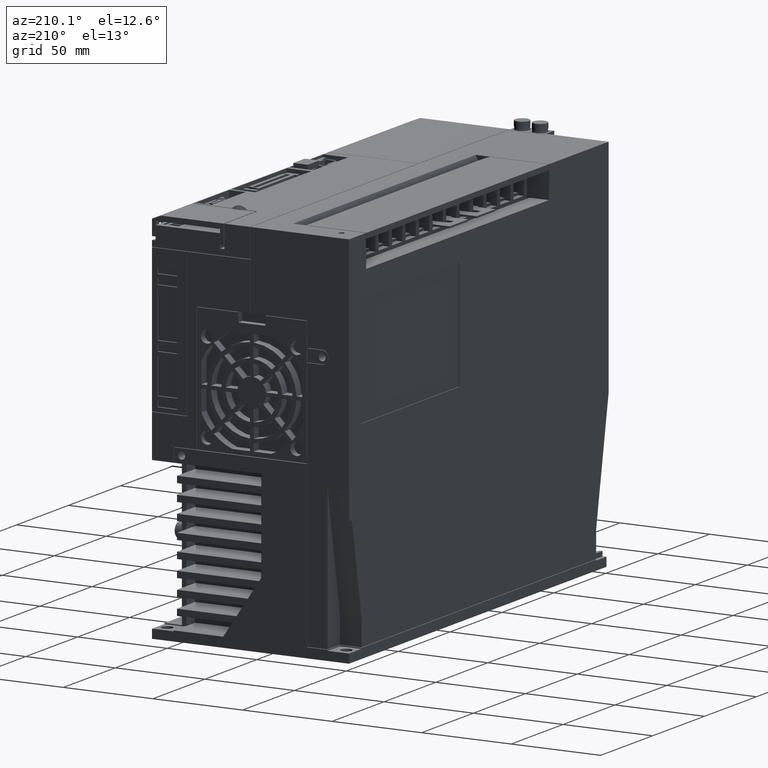
[diagram: clean part render]
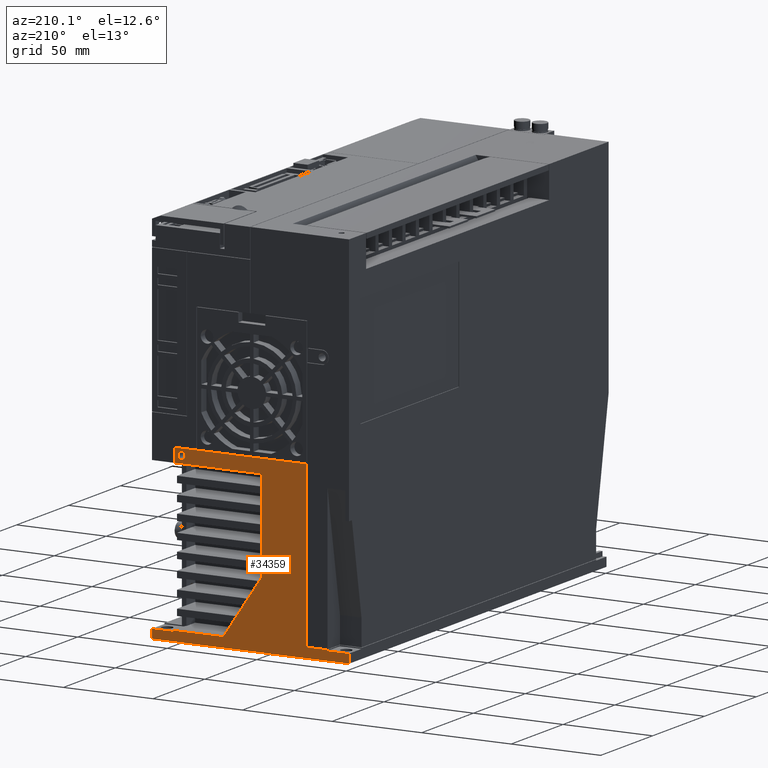
[diagram: same view with one face highlighted and labeled with its STEP entity id]
A machine part, auxiliary view. The second image highlights one B-rep face of the part: STEP entity #34359.
In plain terms, the highlighted planar face has unit normal (0, -1, 0).
Its self-contained STEP definition (entity closure, byte-faithful):
#631=CIRCLE('',#36344,2.);
#7749=ORIENTED_EDGE('',*,*,#14004,.F.);
#7750=ORIENTED_EDGE('',*,*,#10461,.F.);
#7751=ORIENTED_EDGE('',*,*,#12725,.F.);
#7752=ORIENTED_EDGE('',*,*,#14147,.F.);
#7753=ORIENTED_EDGE('',*,*,#14567,.F.);
#7754=ORIENTED_EDGE('',*,*,#13170,.T.);
#7755=ORIENTED_EDGE('',*,*,#14568,.T.);
#7756=ORIENTED_EDGE('',*,*,#14569,.F.);
#7757=ORIENTED_EDGE('',*,*,#14570,.T.);
#7758=ORIENTED_EDGE('',*,*,#13456,.T.);
#7759=ORIENTED_EDGE('',*,*,#14150,.F.);
#7760=ORIENTED_EDGE('',*,*,#14327,.F.);
#7761=ORIENTED_EDGE('',*,*,#14571,.F.);
#7762=ORIENTED_EDGE('',*,*,#11722,.F.);
#7763=ORIENTED_EDGE('',*,*,#14572,.F.);
#7764=ORIENTED_EDGE('',*,*,#14573,.F.);
#10461=EDGE_CURVE('',#15092,#15093,#18366,.T.);
#11722=EDGE_CURVE('',#16264,#16265,#19477,.T.);
#12725=EDGE_CURVE('',#17035,#15092,#20361,.T.);
#13170=EDGE_CURVE('',#17332,#17331,#20764,.T.);
#13456=EDGE_CURVE('',#17507,#17506,#21033,.T.);
#14004=EDGE_CURVE('',#17789,#17789,#631,.T.);
#14147=EDGE_CURVE('',#17867,#17035,#21675,.T.);
#14150=EDGE_CURVE('',#17868,#17506,#21678,.T.);
#14327=EDGE_CURVE('',#17935,#17868,#21841,.T.);
#14567=EDGE_CURVE('',#17332,#17867,#22051,.T.);
#14568=EDGE_CURVE('',#17331,#18024,#22052,.T.);
#14569=EDGE_CURVE('',#18025,#18024,#22053,.T.);
#14570=EDGE_CURVE('',#18025,#17507,#22054,.T.);
#14571=EDGE_CURVE('',#16265,#17935,#22055,.T.);
#14572=EDGE_CURVE('',#18026,#16264,#22056,.T.);
#14573=EDGE_CURVE('',#15093,#18026,#22057,.T.);
#15092=VERTEX_POINT('',#46932);
#15093=VERTEX_POINT('',#46933);
#16264=VERTEX_POINT('',#49631);
#16265=VERTEX_POINT('',#49632);
#17035=VERTEX_POINT('',#51642);
#17331=VERTEX_POINT('',#52503);
#17332=VERTEX_POINT('',#52505);
#17506=VERTEX_POINT('',#53051);
#17507=VERTEX_POINT('',#53053);
#17789=VERTEX_POINT('',#54112);
#17867=VERTEX_POINT('',#54405);
#17868=VERTEX_POINT('',#54409);
#17935=VERTEX_POINT('',#54759);
#18024=VERTEX_POINT('',#55263);
#18025=VERTEX_POINT('',#55265);
#18026=VERTEX_POINT('',#55269);
#18366=LINE('',#46931,#22601);
#19477=LINE('',#49630,#23712);
#20361=LINE('',#51643,#24596);
#20764=LINE('',#52504,#24999);
#21033=LINE('',#53052,#25268);
#21675=LINE('',#54404,#25910);
#21678=LINE('',#54410,#25913);
#21841=LINE('',#54760,#26076);
#22051=LINE('',#55261,#26286);
#22052=LINE('',#55262,#26287);
#22053=LINE('',#55264,#26288);
#22054=LINE('',#55266,#26289);
#22055=LINE('',#55267,#26290);
#22056=LINE('',#55268,#26291);
#22057=LINE('',#55270,#26292);
#22601=VECTOR('',#37816,1000.);
#23712=VECTOR('',#39759,1000.);
#24596=VECTOR('',#41357,1000.);
#24999=VECTOR('',#42084,1000.);
#25268=VECTOR('',#42561,1000.);
#25910=VECTOR('',#43903,1000.);
#25913=VECTOR('',#43908,1000.);
#26076=VECTOR('',#44311,1000.);
#26286=VECTOR('',#44927,1000.);
#26287=VECTOR('',#44928,1000.);
#26288=VECTOR('',#44929,1000.);
#26289=VECTOR('',#44930,1000.);
#26290=VECTOR('',#44931,1000.);
#26291=VECTOR('',#44932,1000.);
#26292=VECTOR('',#44933,1000.);
#28299=EDGE_LOOP('',(#7749));
#28300=EDGE_LOOP('',(#7750,#7751,#7752,#7753,#7754,#7755,#7756,#7757,#7758,
#7759,#7760,#7761,#7762,#7763,#7764));
#30642=FACE_BOUND('',#28299,.T.);
#30643=FACE_BOUND('',#28300,.T.);
#32508=PLANE('',#36752);
#34359=ADVANCED_FACE('',(#30642,#30643),#32508,.F.);
#36344=AXIS2_PLACEMENT_3D('',#54111,#43603,#43604);
#36752=AXIS2_PLACEMENT_3D('',#55260,#44925,#44926);
#37816=DIRECTION('',(-1.,-1.26161707343768E-16,0.));
#39759=DIRECTION('',(1.,1.26161707343768E-16,3.08972718350894E-32));
#41357=DIRECTION('',(0.,0.,1.));
#42084=DIRECTION('',(-1.,-1.01261617073437E-14,0.));
#42561=DIRECTION('',(1.,1.26161707343768E-16,0.));
#43603=DIRECTION('',(0.,1.,0.));
#43604=DIRECTION('',(-1.,0.,0.));
#43903=DIRECTION('',(-1.,-1.26161707343768E-16,0.));
#43908=DIRECTION('',(0.,0.,-1.));
#44311=DIRECTION('',(-1.,-1.01261617073437E-14,0.));
#44925=DIRECTION('',(1.26161707343768E-16,-1.,0.));
#44926=DIRECTION('',(0.,0.,-1.));
#44927=DIRECTION('',(0.,0.,1.));
#44928=DIRECTION('',(0.,0.,1.));
#44929=DIRECTION('',(-1.,1.01445602896646E-14,0.));
#44930=DIRECTION('',(0.,0.,1.));
#44931=DIRECTION('',(0.,0.,1.));
#44932=DIRECTION('',(1.01347358039593E-14,0.,1.));
#44933=DIRECTION('',(-0.55919290347075,-1.0068483378075E-14,0.829037572555039));
#46931=CARTESIAN_POINT('',(-7.5697024406261E-16,6.00000000000001,5.5));
#46932=CARTESIAN_POINT('',(-7.00000000000673,6.00000000000667,5.50000000000667));
#46933=CARTESIAN_POINT('',(-34.7529817194676,6.0000000000067,5.50000000000619));
#49630=CARTESIAN_POINT('',(-0.4,6.00000000000001,88.5));
#49631=CARTESIAN_POINT('',(-56.0000000000067,6.0000000000065,88.5000000000067));
#49632=CARTESIAN_POINT('',(-7.50000000000621,6.00000000000669,88.5000000000067));
#51642=CARTESIAN_POINT('',(-7.00000000000673,6.00000000000667,5.00000000000667));
#51643=CARTESIAN_POINT('',(-7.,6.00000000000001,20.5));
#52503=CARTESIAN_POINT('',(-105.,6.,0.));
#52504=CARTESIAN_POINT('',(-105.00000000001,6.00000000001,0.));
#52505=CARTESIAN_POINT('',(5.00000000000667,6.00000000000704,0.));
#53051=CARTESIAN_POINT('',(-81.4000000000062,6.00000000000675,5.50000000000667));
#53052=CARTESIAN_POINT('',(-105.,6.,5.50000000000001));
#53053=CARTESIAN_POINT('',(-93.0000000000067,6.00000000000671,5.50000000000667));
#54111=CARTESIAN_POINT('',(-11.50000000001,6.00000000001,92.50000000001));
#54112=CARTESIAN_POINT('',(-13.50000000001,6.00000000001,92.50000000001));
#54404=CARTESIAN_POINT('',(-105.,6.,5.));
#54405=CARTESIAN_POINT('',(5.00000000000667,6.00000000000671,5.00000000000667));
#54409=CARTESIAN_POINT('',(-81.4000000000059,6.00000000000697,96.2000000000067));
#54410=CARTESIAN_POINT('',(-81.4,6.00000000000001,179.505863254406));
#54759=CARTESIAN_POINT('',(-7.50000000000624,6.00000000000692,96.2000000000067));
#54760=CARTESIAN_POINT('',(-81.40000000001,6.00000000001,96.20000000001));
#55260=CARTESIAN_POINT('',(-105.,6.,467.130005674953));
#55261=CARTESIAN_POINT('',(5.,6.00000000000001,467.130005674953));
#55262=CARTESIAN_POINT('',(-105.00000000001,6.00000000001,-280.471032372339));
#55263=CARTESIAN_POINT('',(-105.,6.,5.));
#55264=CARTESIAN_POINT('',(-93.00000000001,6.00000000001,5.00000000001));
#55265=CARTESIAN_POINT('',(-93.,6.,5.));
#55266=CARTESIAN_POINT('',(-93.00000000001,6.00000000001,5.00000000001));
#55267=CARTESIAN_POINT('',(-7.50000000000004,6.00000000000001,202.));
#55268=CARTESIAN_POINT('',(-56.00000000001,6.00000000001,88.50000000001));
#55269=CARTESIAN_POINT('',(-56.,6.,37.));
#55270=CARTESIAN_POINT('',(-56.00000000001,6.00000000001,37.00000000001));